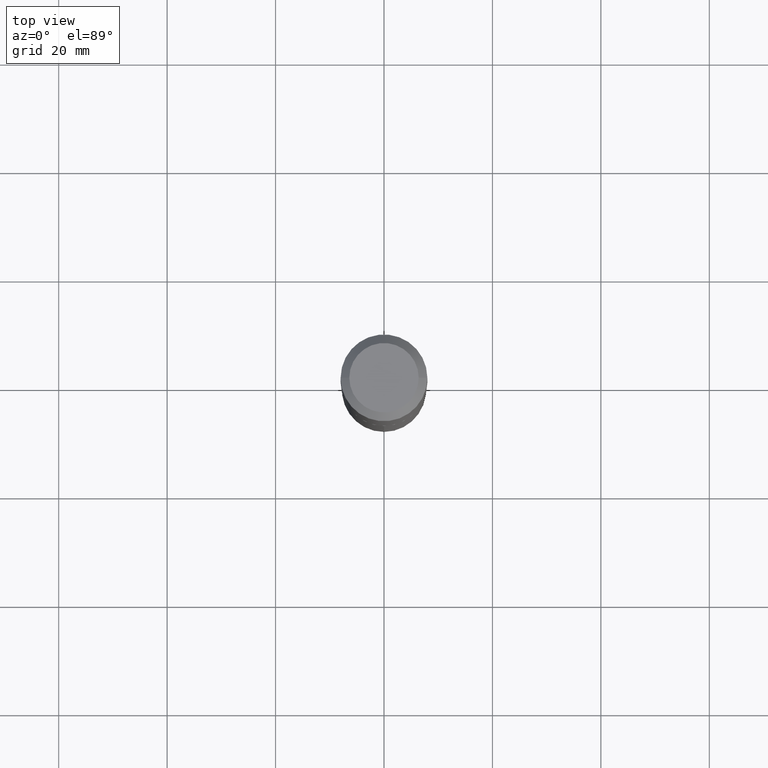
[diagram: clean part render]
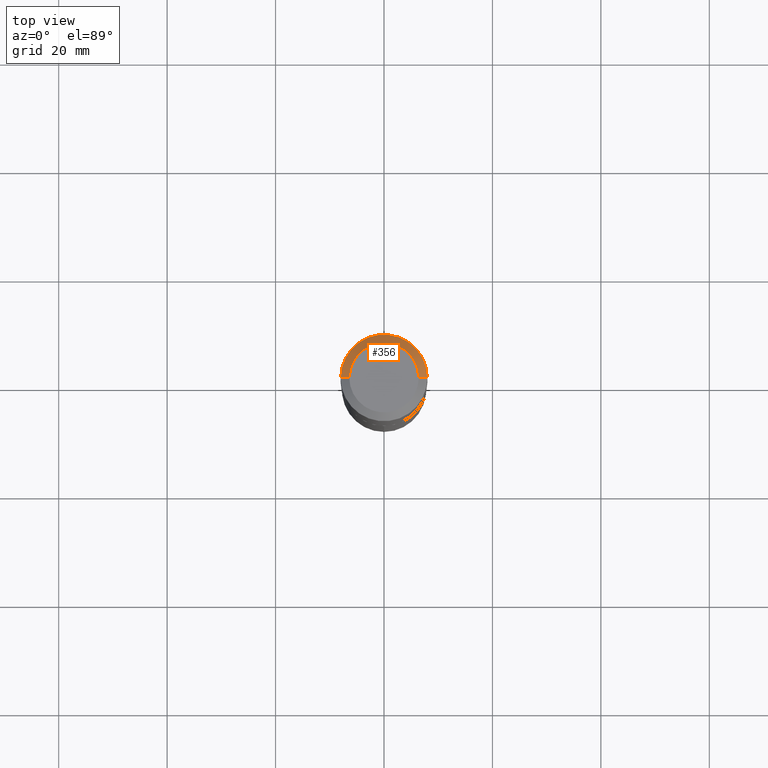
[diagram: same view with one face highlighted and labeled with its STEP entity id]
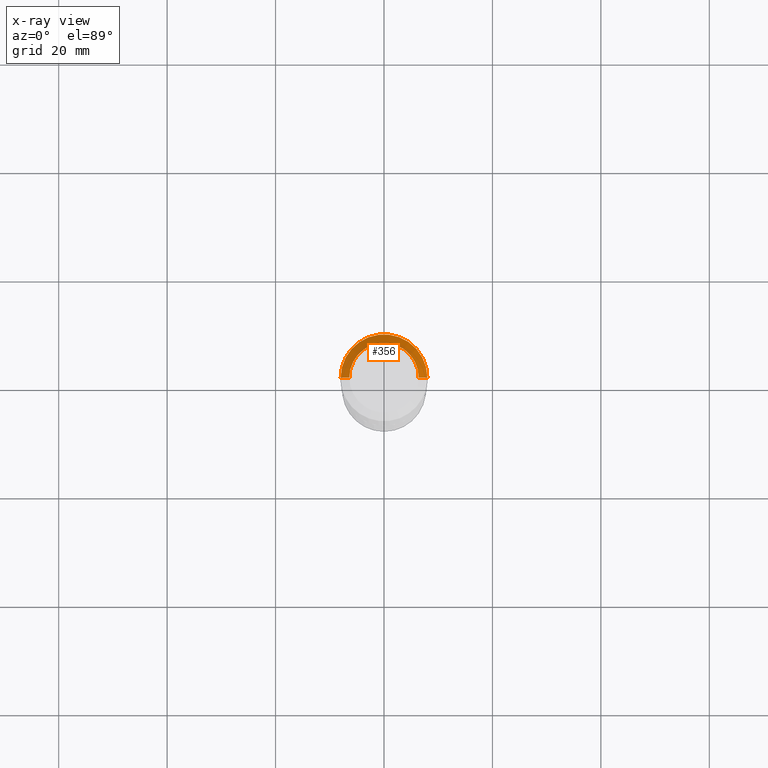
[diagram: x-ray of the same camera — body ghosted, the highlighted face saturated]
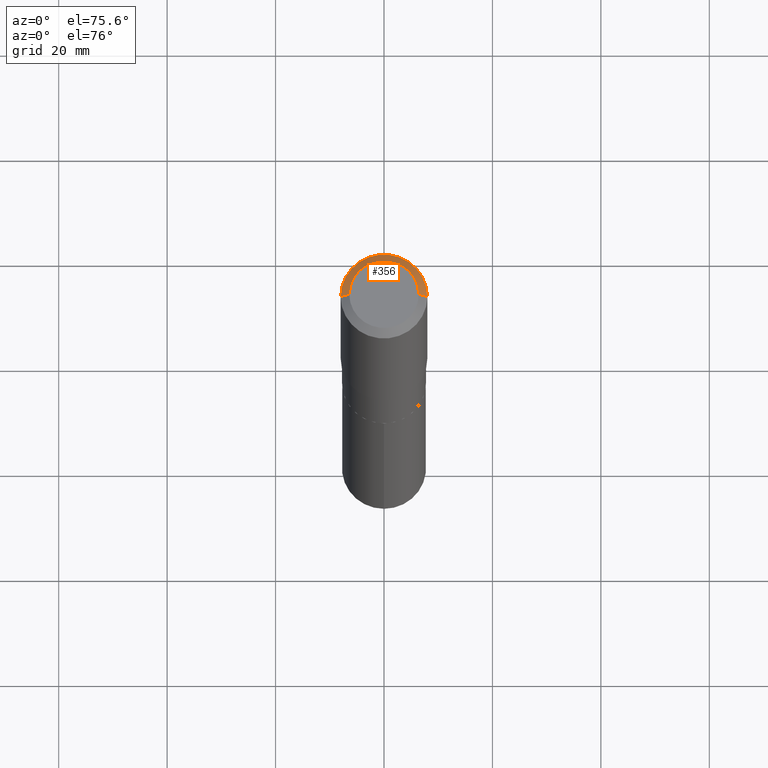
[diagram: same view with one face highlighted and labeled with its STEP entity id]
A machine part, top view. The second image highlights one B-rep face of the part: STEP entity #356.
The next image is the same camera in x-ray: the body ghosted, the highlighted face saturated — about 0% of this face is hidden behind the body in this view.
A second angle (auxiliary view) of the same face is appended — the face is thin or edge-on in the first view.
In plain terms, the highlighted conical surface has half-angle 45 deg.
Its self-contained STEP definition (entity closure, byte-faithful):
#19 = CIRCLE ( 'NONE', #136, 0.3149500000000000077 ) ;
#28 = CARTESIAN_POINT ( 'NONE',  ( -0.3149500000000000077, 1.979355685803558833E-15, -0.06299000000000036514 ) ) ;
#56 = EDGE_CURVE ( 'NONE', #358, #383, #476, .T. ) ;
#63 = DIRECTION ( 'NONE',  ( -2.445468806185136597E-29, 3.491481338843145583E-15, 1.000000000000000000 ) ) ;
#77 = DIRECTION ( 'NONE',  ( 2.445468806185136597E-29, -3.491481338843145583E-15, -1.000000000000000000 ) ) ;
#78 = CARTESIAN_POINT ( 'NONE',  ( 0.2519600000000000173, -2.054606664725195058E-15, 3.855188123729206640E-18 ) ) ;
#88 = VECTOR ( 'NONE', #200, 39.37007874015748143 ) ;
#94 = CARTESIAN_POINT ( 'NONE',  ( 0.3149500000000000077, -2.380642253931875190E-15, -0.06299000000000036514 ) ) ;
#110 = VERTEX_POINT ( 'NONE', #437 ) ;
#121 = VERTEX_POINT ( 'NONE', #248 ) ;
#124 = ORIENTED_EDGE ( 'NONE', *, *, #243, .F. ) ;
#136 = AXIS2_PLACEMENT_3D ( 'NONE', #377, #63, #412 ) ;
#143 = LINE ( 'NONE', #28, #289 ) ;
#145 = EDGE_CURVE ( 'NONE', #358, #110, #307, .T. ) ;
#152 = AXIS2_PLACEMENT_3D ( 'NONE', #246, #335, #256 ) ;
#162 = EDGE_CURVE ( 'NONE', #383, #121, #19, .T. ) ;
#198 = DIRECTION ( 'NONE',  ( -1.000000000000000000, 6.982962677686266711E-15, 0.000000000000000000 ) ) ;
#200 = DIRECTION ( 'NONE',  ( 0.7071067811865453523, -7.319954787623248157E-15, -0.7071067811865496822 ) ) ;
#239 = CONICAL_SURFACE ( 'NONE', #435, 0.3149500000000000077, 0.7853981633974452814 ) ;
#243 = EDGE_CURVE ( 'NONE', #110, #121, #143, .T. ) ;
#246 = CARTESIAN_POINT ( 'NONE',  ( -9.427742298522569579E-47, 1.346031739168368629E-32, 3.855188123715871501E-18 ) ) ;
#248 = CARTESIAN_POINT ( 'NONE',  ( -0.3149500000000000077, -1.131669549400918704E-15, -0.06299000000000036514 ) ) ;
#256 = DIRECTION ( 'NONE',  ( 1.000000000000000000, -6.982962677686266711E-15, 4.876115136096691995E-29 ) ) ;
#257 = ORIENTED_EDGE ( 'NONE', *, *, #162, .T. ) ;
#272 = FACE_OUTER_BOUND ( 'NONE', #424, .T. ) ;
#289 = VECTOR ( 'NONE', #342, 39.37007874015748143 ) ;
#307 = CIRCLE ( 'NONE', #152, 0.2519600000000000173 ) ;
#311 = CARTESIAN_POINT ( 'NONE',  ( 1.540400801016026329E-30, -2.199284095337310135E-16, -0.06299000000000036514 ) ) ;
#335 = DIRECTION ( 'NONE',  ( -2.445468806185136597E-29, 3.491481338843145583E-15, 1.000000000000000000 ) ) ;
#342 = DIRECTION ( 'NONE',  ( -0.7071067811865453523, 2.468850131082234184E-15, -0.7071067811865496822 ) ) ;
#356 = ADVANCED_FACE ( 'NONE', ( #272 ), #239, .T. ) ;
#358 = VERTEX_POINT ( 'NONE', #78 ) ;
#377 = CARTESIAN_POINT ( 'NONE',  ( 1.540400801016026329E-30, -2.199284095337310135E-16, -0.06299000000000036514 ) ) ;
#383 = VERTEX_POINT ( 'NONE', #393 ) ;
#393 = CARTESIAN_POINT ( 'NONE',  ( 0.3149500000000000077, -2.419212504871020909E-15, -0.06299000000000036514 ) ) ;
#412 = DIRECTION ( 'NONE',  ( 1.000000000000000000, -6.982962677686266711E-15, 0.000000000000000000 ) ) ;
#424 = EDGE_LOOP ( 'NONE', ( #454, #490, #257, #124 ) ) ;
#435 = AXIS2_PLACEMENT_3D ( 'NONE', #311, #77, #198 ) ;
#437 = CARTESIAN_POINT ( 'NONE',  ( -0.2519600000000000173, 1.869391481036695286E-15, 3.855188123703182704E-18 ) ) ;
#454 = ORIENTED_EDGE ( 'NONE', *, *, #145, .F. ) ;
#476 = LINE ( 'NONE', #94, #88 ) ;
#490 = ORIENTED_EDGE ( 'NONE', *, *, #56, .T. ) ;